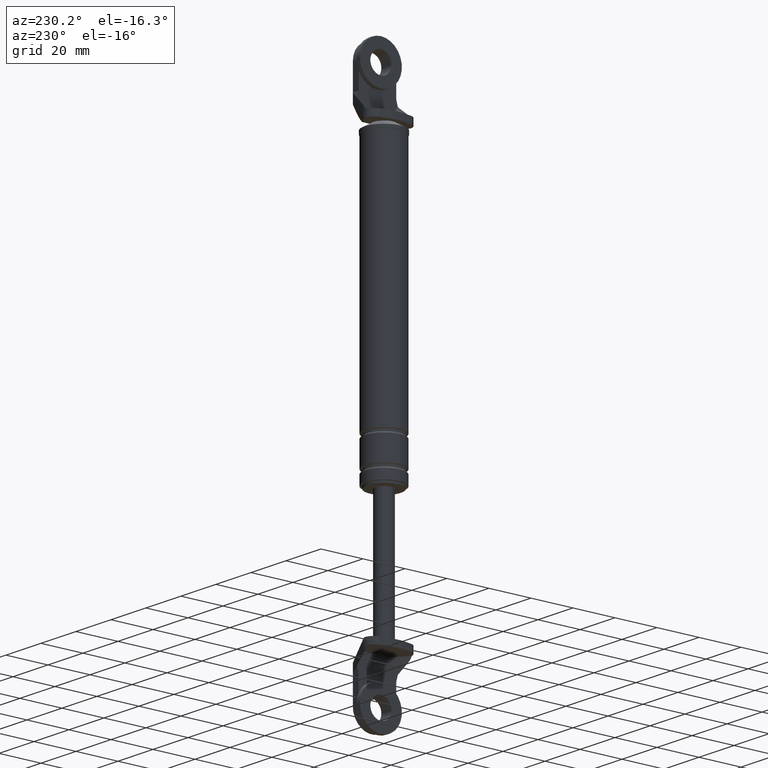
[diagram: clean part render]
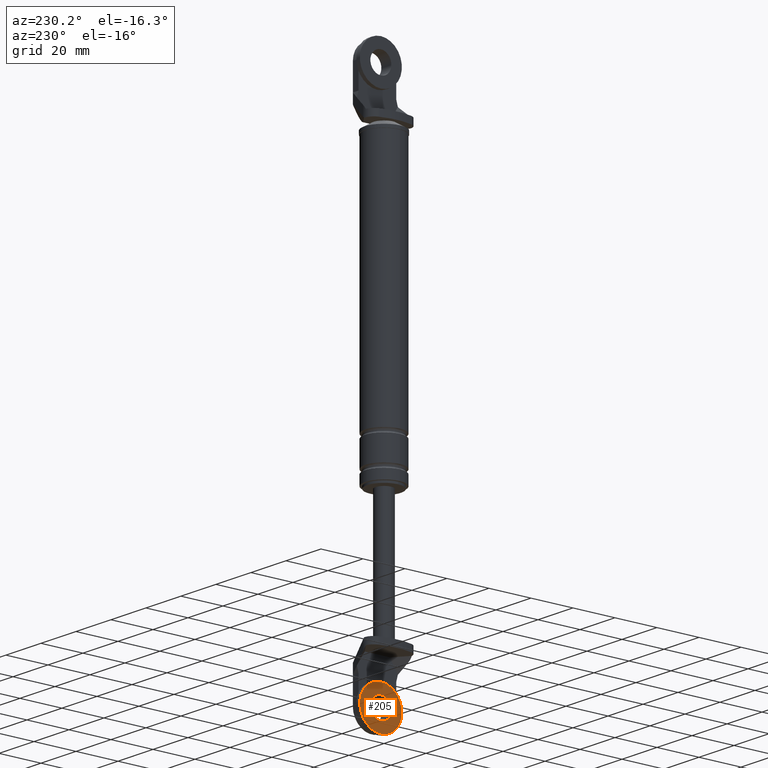
[diagram: same view with one face highlighted and labeled with its STEP entity id]
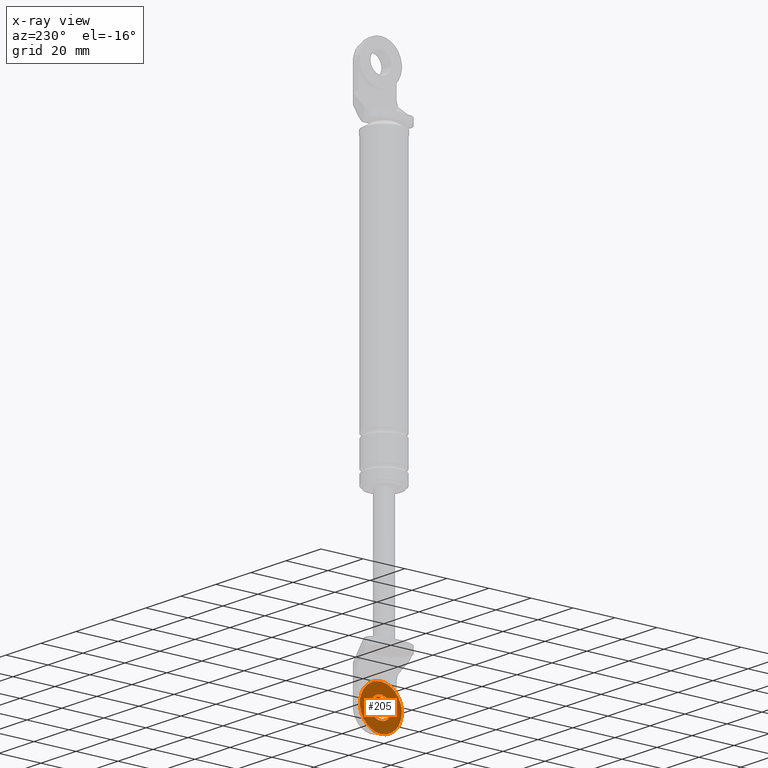
[diagram: x-ray of the same camera — body ghosted, the highlighted face saturated]
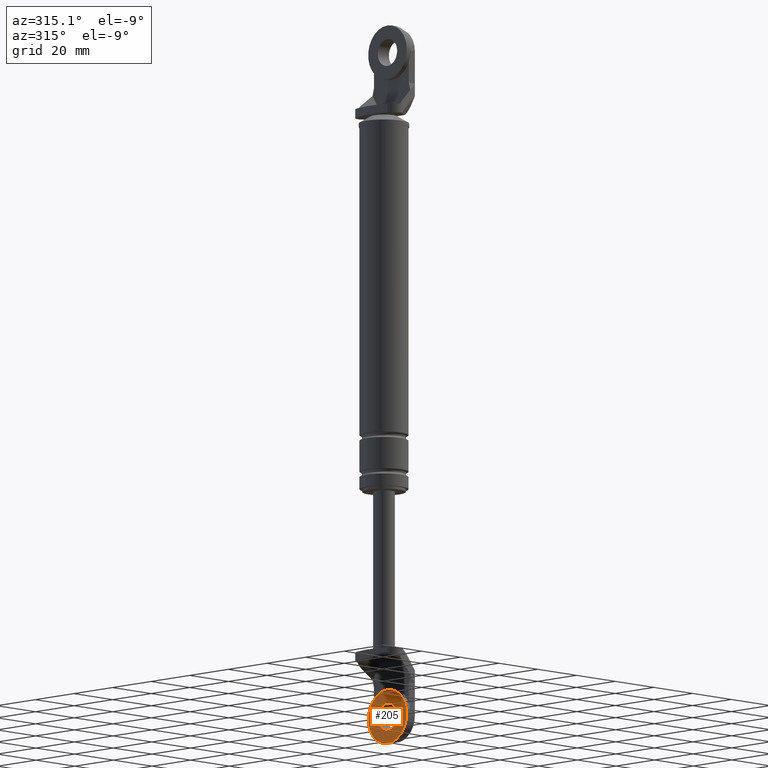
[diagram: same view with one face highlighted and labeled with its STEP entity id]
A machine part, auxiliary view. The second image highlights one B-rep face of the part: STEP entity #205.
The next image is the same camera in x-ray: the body ghosted, the highlighted face saturated — about 0% of this face is hidden behind the body in this view.
A second angle (auxiliary view) of the same face is appended — the face is thin or edge-on in the first view.
In plain terms, the highlighted planar face has unit normal (1, 0, 0).
Its self-contained STEP definition (entity closure, byte-faithful):
#205=ADVANCED_FACE('',(#298,#299),#297,.F.);
#297=PLANE('',#1125);
#298=FACE_OUTER_BOUND('',#1126,.T.);
#299=FACE_BOUND('',#1127,.T.);
#1122=CARTESIAN_POINT('',(-6.90000460000E+001,2.07846096908E+001,2.76000000000E+002));
#1123=DIRECTION('',(1.00000000000E+000,0.00000000000E+000,0.00000000000E+000));
#1124=DIRECTION('',(0.00000000000E+000,-1.00000000000E+000,0.00000000000E+000));
#1125=AXIS2_PLACEMENT_3D('',#1122,#1123,#1124);
#1126=EDGE_LOOP('',(#1766,#1767));
#1127=EDGE_LOOP('',(#1768,#1769));
#1766=ORIENTED_EDGE('',*,*,#2162,.T.);
#1767=ORIENTED_EDGE('',*,*,#2163,.T.);
#1768=ORIENTED_EDGE('',*,*,#2164,.F.);
#1769=ORIENTED_EDGE('',*,*,#2165,.F.);
#2162=EDGE_CURVE('',#2384,#2385,#2386,.T.);
#2163=EDGE_CURVE('',#2385,#2384,#2392,.T.);
#2164=EDGE_CURVE('',#2398,#2399,#2400,.T.);
#2165=EDGE_CURVE('',#2399,#2398,#2406,.T.);
#2384=VERTEX_POINT('',#3690);
#2385=VERTEX_POINT('',#3691);
#2386=CIRCLE('',#3695,1.00000000000E+001);
#2392=CIRCLE('',#3699,1.00000000000E+001);
#2398=VERTEX_POINT('',#3700);
#2399=VERTEX_POINT('',#3701);
#2400=CIRCLE('',#3705,5.00000000000E+000);
#2406=CIRCLE('',#3709,5.00000000000E+000);
#3690=CARTESIAN_POINT('',(-6.90000460000E+001,5.68434188608E-014,2.43000000000E+002));
#3691=CARTESIAN_POINT('',(-6.90000460000E+001,5.80276567537E-014,2.63000000000E+002));
#3692=CARTESIAN_POINT('',(-6.90000460000E+001,5.68434188608E-014,2.53000000000E+002));
#3693=DIRECTION('',(-1.00000000000E+000,0.00000000000E+000,-0.00000000000E+000));
#3694=DIRECTION('',(0.00000000000E+000,-1.22460635382E-016,-1.00000000000E+000));
#3695=AXIS2_PLACEMENT_3D('',#3692,#3693,#3694);
#3696=CARTESIAN_POINT('',(-6.90000460000E+001,5.68434188608E-014,2.53000000000E+002));
#3697=DIRECTION('',(-1.00000000000E+000,0.00000000000E+000,-0.00000000000E+000));
#3698=DIRECTION('',(0.00000000000E+000,-1.22460635382E-016,-1.00000000000E+000));
#3699=AXIS2_PLACEMENT_3D('',#3696,#3697,#3698);
#3700=CARTESIAN_POINT('',(-6.90000460000E+001,5.74355378073E-014,2.58000000000E+002));
#3701=CARTESIAN_POINT('',(-6.90000460000E+001,5.68434188608E-014,2.48000000000E+002));
#3702=CARTESIAN_POINT('',(-6.90000460000E+001,5.68434188608E-014,2.53000000000E+002));
#3703=DIRECTION('',(-1.00000000000E+000,0.00000000000E+000,-0.00000000000E+000));
#3704=DIRECTION('',(0.00000000000E+000,-1.22460635382E-016,-1.00000000000E+000));
#3705=AXIS2_PLACEMENT_3D('',#3702,#3703,#3704);
#3706=CARTESIAN_POINT('',(-6.90000460000E+001,5.68434188608E-014,2.53000000000E+002));
#3707=DIRECTION('',(-1.00000000000E+000,0.00000000000E+000,-0.00000000000E+000));
#3708=DIRECTION('',(0.00000000000E+000,-1.22460635382E-016,-1.00000000000E+000));
#3709=AXIS2_PLACEMENT_3D('',#3706,#3707,#3708);